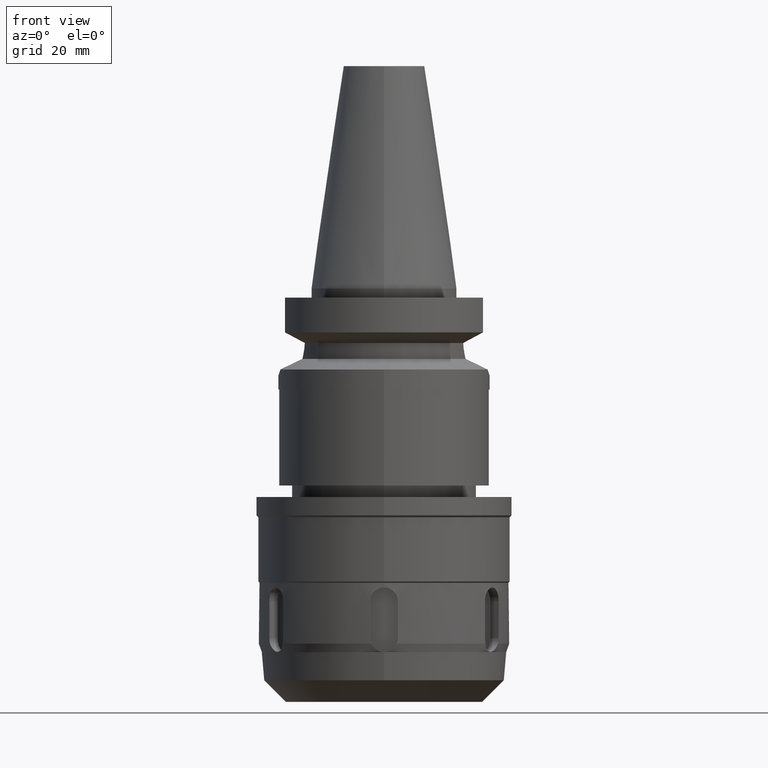
[diagram: clean part render]
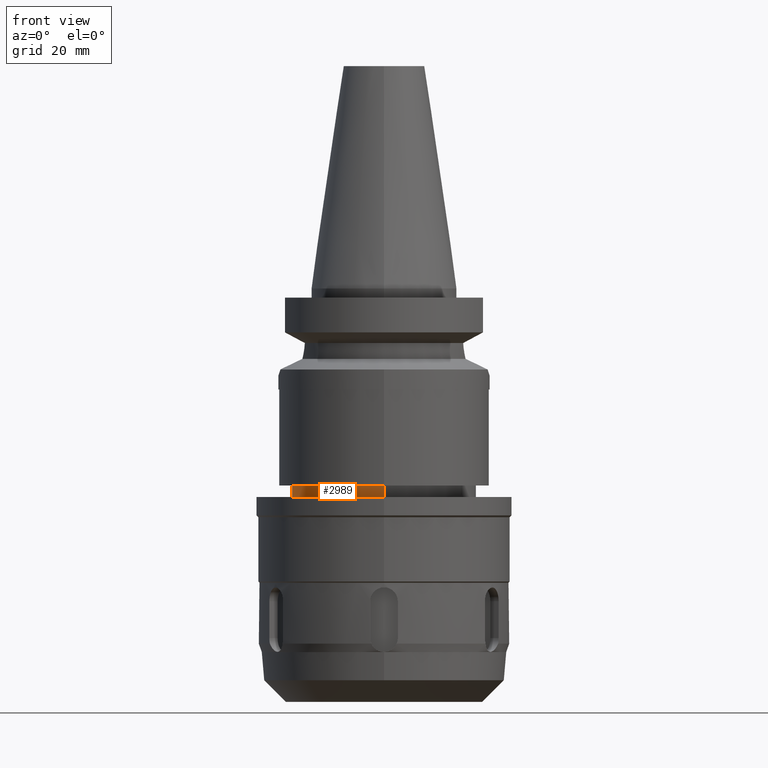
[diagram: same view with one face highlighted and labeled with its STEP entity id]
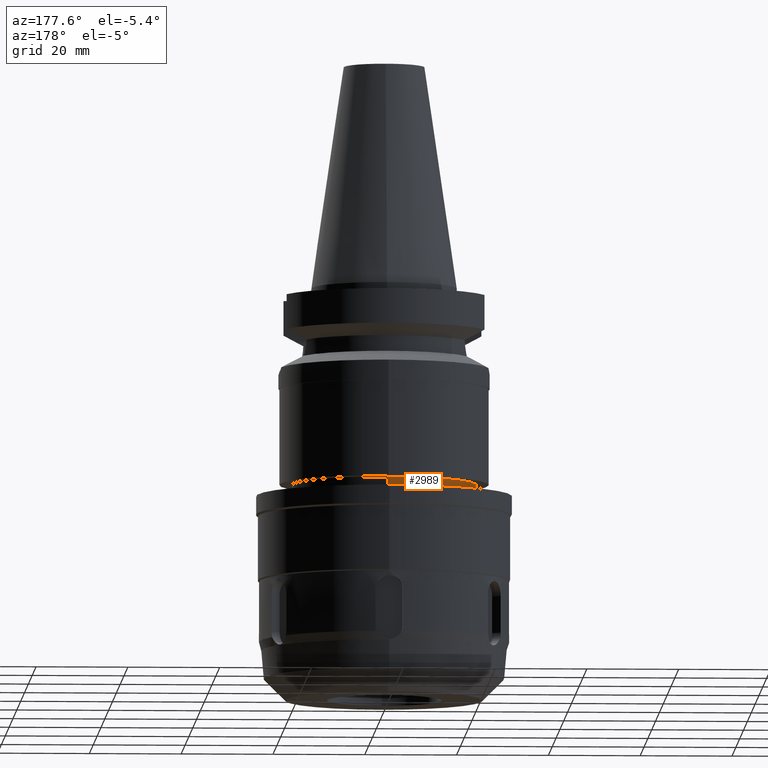
[diagram: same view with one face highlighted and labeled with its STEP entity id]
A machine part, front view. The second image highlights one B-rep face of the part: STEP entity #2989.
A second angle (auxiliary view) of the same face is appended — the face is thin or edge-on in the first view.
In plain terms, the highlighted cylindrical surface (partial cylindrical patch) has radius 20.15 mm, axis along (0, 0, -1).
Its self-contained STEP definition (entity closure, byte-faithful):
#680=CARTESIAN_POINT('',(0.E0,1.902121408436E-14,-4.29E1));
#681=DIRECTION('',(0.E0,0.E0,-1.E0));
#682=DIRECTION('',(0.E0,-1.E0,0.E0));
#683=AXIS2_PLACEMENT_3D('',#680,#681,#682);
#696=DIRECTION('',(0.E0,0.E0,-1.E0));
#697=VECTOR('',#696,2.5E0);
#698=CARTESIAN_POINT('',(0.E0,-2.015E1,-4.29E1));
#699=LINE('',#698,#697);
#703=DIRECTION('',(0.E0,0.E0,-1.E0));
#704=VECTOR('',#703,2.5E0);
#705=CARTESIAN_POINT('',(0.E0,2.015E1,-4.29E1));
#706=LINE('',#705,#704);
#734=CARTESIAN_POINT('',(0.E0,1.902121408436E-14,-4.54E1));
#735=DIRECTION('',(0.E0,0.E0,1.E0));
#736=DIRECTION('',(0.E0,1.E0,0.E0));
#737=AXIS2_PLACEMENT_3D('',#734,#735,#736);
#2364=CARTESIAN_POINT('',(0.E0,-2.015E1,-4.54E1));
#2365=CARTESIAN_POINT('',(0.E0,2.015E1,-4.54E1));
#2366=VERTEX_POINT('',#2364);
#2367=VERTEX_POINT('',#2365);
#2368=CARTESIAN_POINT('',(0.E0,2.015E1,-4.29E1));
#2369=VERTEX_POINT('',#2368);
#2370=CARTESIAN_POINT('',(0.E0,-2.015E1,-4.29E1));
#2371=VERTEX_POINT('',#2370);
#2975=CARTESIAN_POINT('',(0.E0,1.902121408436E-14,5.532E1));
#2976=DIRECTION('',(0.E0,0.E0,-1.E0));
#2977=DIRECTION('',(0.E0,-1.E0,0.E0));
#2978=AXIS2_PLACEMENT_3D('',#2975,#2976,#2977);
#2979=CYLINDRICAL_SURFACE('',#2978,2.015E1);
#2981=ORIENTED_EDGE('',*,*,#2980,.F.);
#2982=ORIENTED_EDGE('',*,*,#2968,.F.);
#2984=ORIENTED_EDGE('',*,*,#2983,.T.);
#2986=ORIENTED_EDGE('',*,*,#2985,.F.);
#2987=EDGE_LOOP('',(#2981,#2982,#2984,#2986));
#2988=FACE_OUTER_BOUND('',#2987,.F.);
#684=CIRCLE('',#683,2.015E1);
#738=CIRCLE('',#737,2.015E1);
#2968=EDGE_CURVE('',#2371,#2369,#684,.T.);
#2980=EDGE_CURVE('',#2369,#2367,#706,.T.);
#2983=EDGE_CURVE('',#2371,#2366,#699,.T.);
#2985=EDGE_CURVE('',#2367,#2366,#738,.T.);
#2989=ADVANCED_FACE('',(#2988),#2979,.T.);